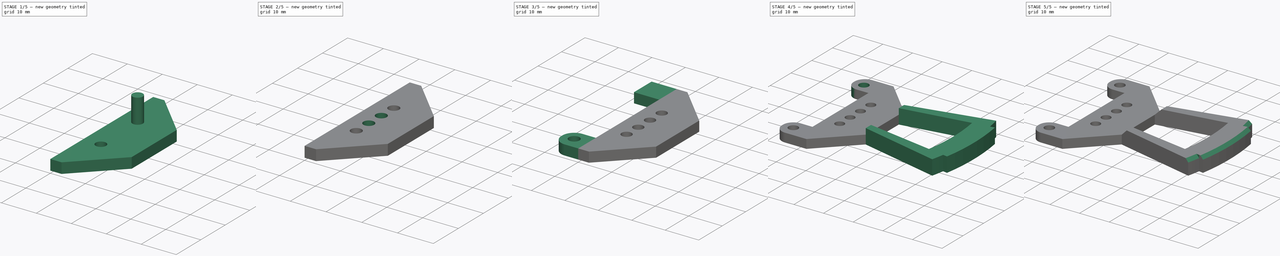
[diagram: build sequence overview — one tinted view per stage of 5, left to right]
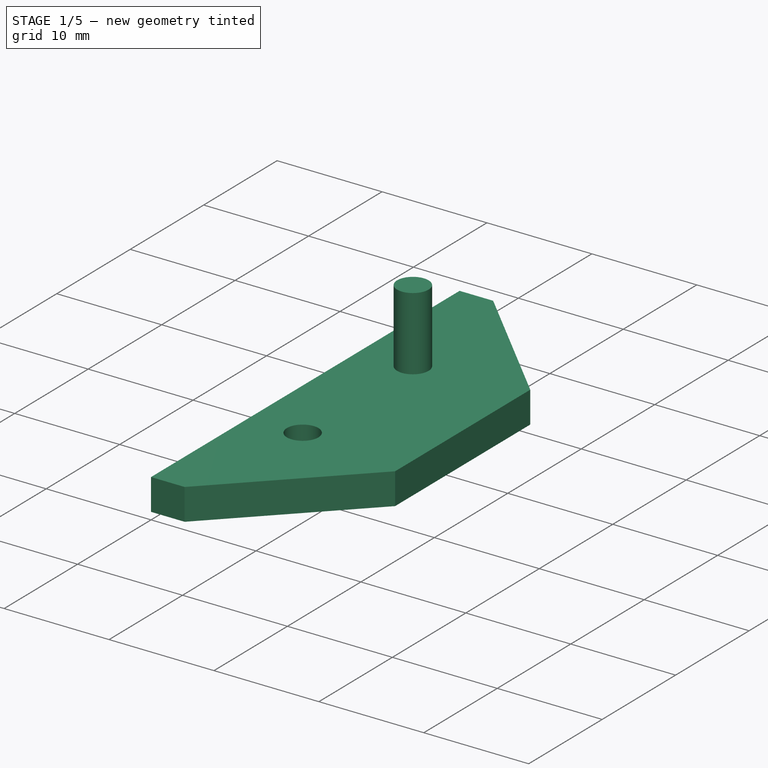
[diagram: stage 1 of 5 — iso view after this stage's code; geometry added in this stage tinted green]
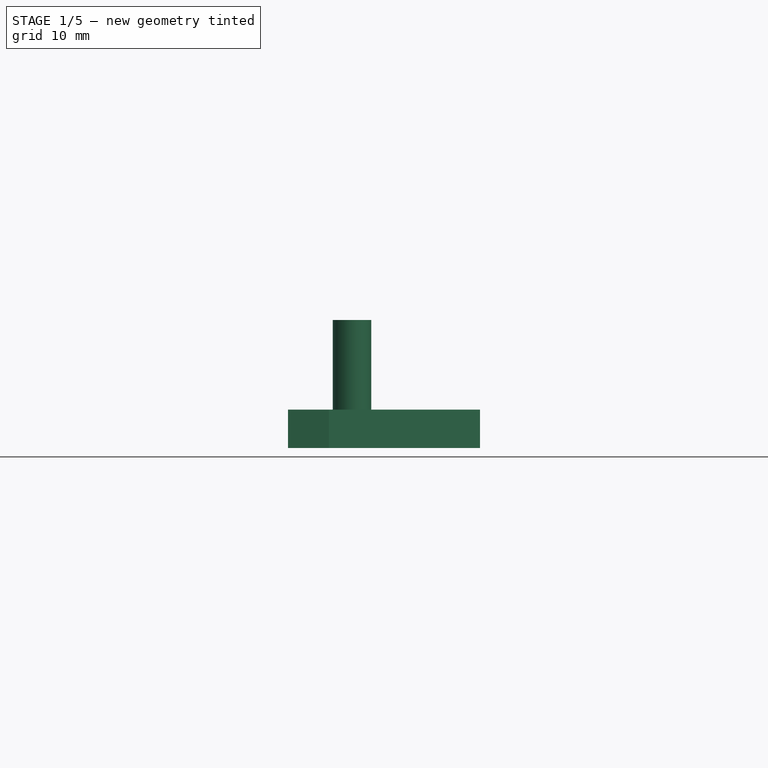
[diagram: stage 1 of 5 — front view after this stage's code; geometry added in this stage tinted green]
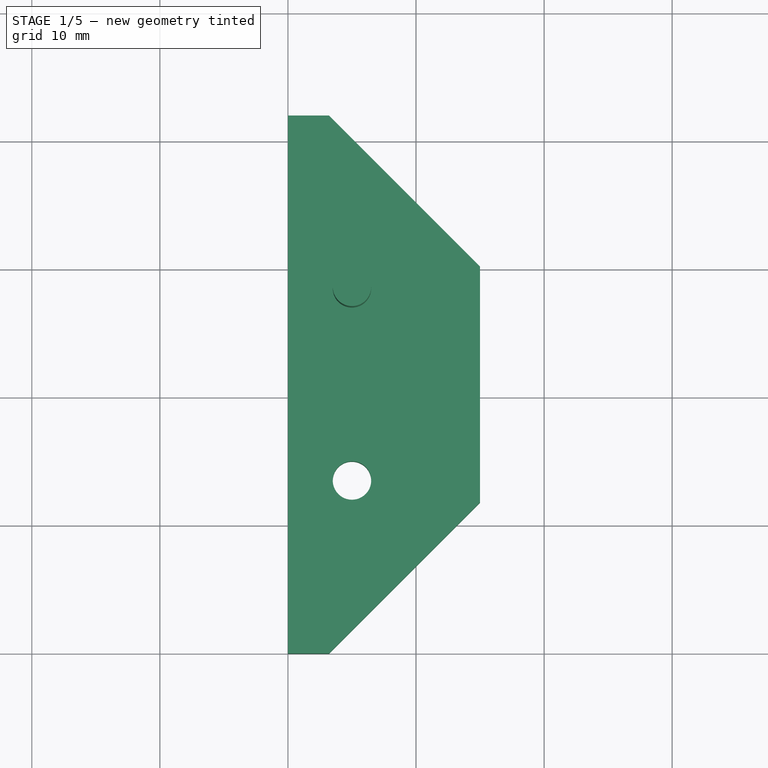
[diagram: stage 1 of 5 — top view after this stage's code; geometry added in this stage tinted green]
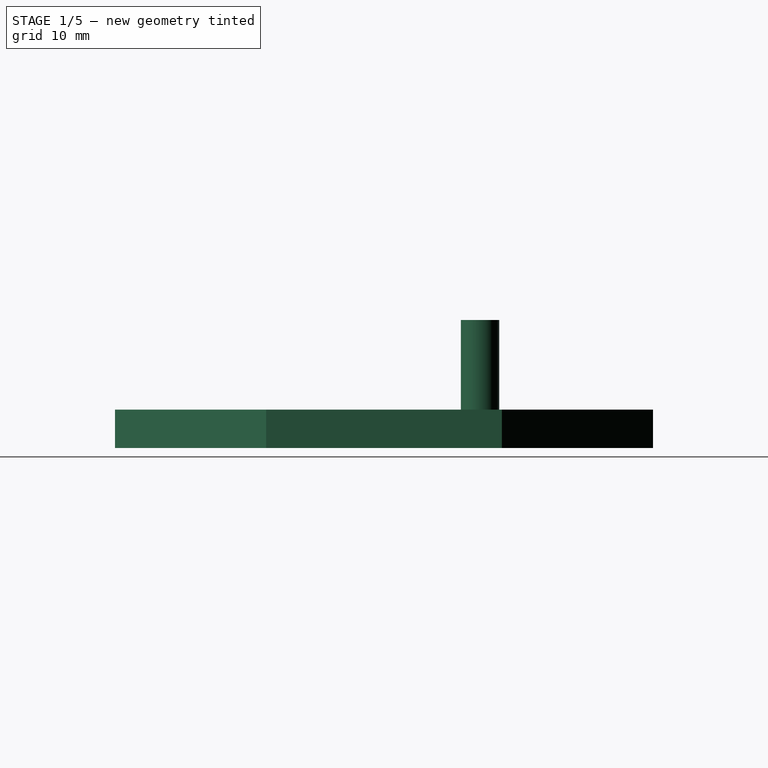
[diagram: stage 1 of 5 — right view after this stage's code; geometry added in this stage tinted green]
FCSTD DOCUMENT  (FreeCAD 0.16R6707 (Git))
Label: xmaxx-hallsensorholder
License: All rights reserved
LicenseURL: http://en.wikipedia.org/wiki/All_rights_reserved
objects: PartDesign::Chamfer×7, Part::Cylinder×6, Part::Cut×6, PartDesign::Fillet×4, Part::Box×3, Sketcher::SketchObject×1, PartDesign::Pad×1, Part::MultiFuse×1
note: 30 computed .brp shape members not serialized (recipe doc carries the construction recipe); baked Part::Feature solids carry a one-line shape summary decoded from their .brp

FEATURE [Part::Box] Box  label="Cube"
  Height = 3
  Length = 15
  Width = 42
FEATURE [Part::Cylinder] Cylinder002
  Angle = 360
  Height = 10
  Placement = pos=(5,13.5,0) rot=(0,0,1;0rad)
  Radius = 1.5
FEATURE [Part::Cylinder] Cylinder003
  Angle = 360
  Height = 10
  Placement = pos=(5,28.5,0) rot=(0,0,1;0rad)
  Radius = 1.5
FEATURE [PartDesign::Chamfer] Chamfer005
  Base = -> Box [Edge7]
  Size = 11.8
FEATURE [PartDesign::Chamfer] Chamfer006
  Base = -> Chamfer005 [Edge3]
  Size = 11.8
FEATURE [Part::Cut] Cut002
  Base = -> Chamfer006
  Tool = -> Cylinder002
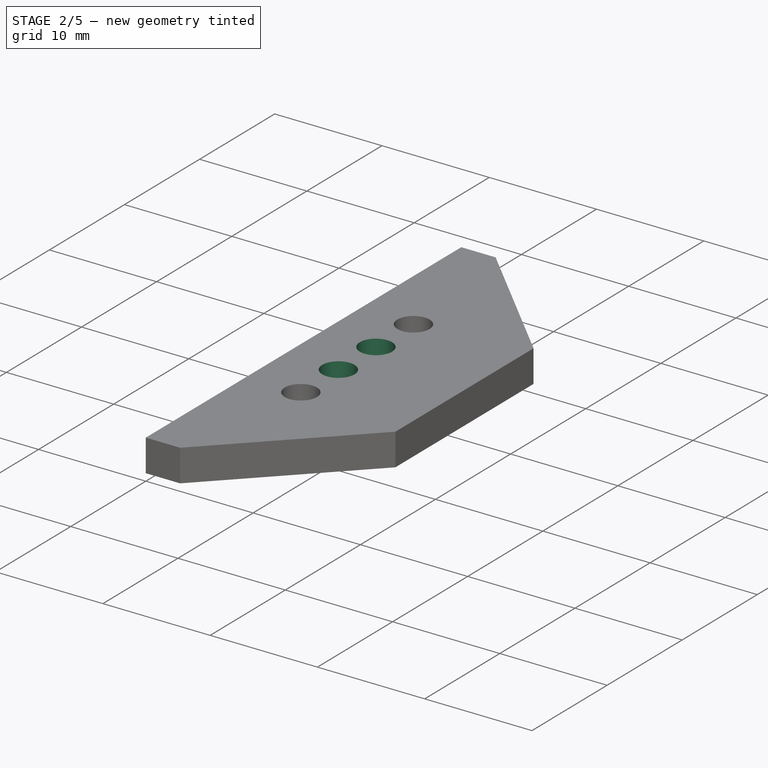
[diagram: stage 2 of 5 — iso view after this stage's code; geometry added in this stage tinted green]
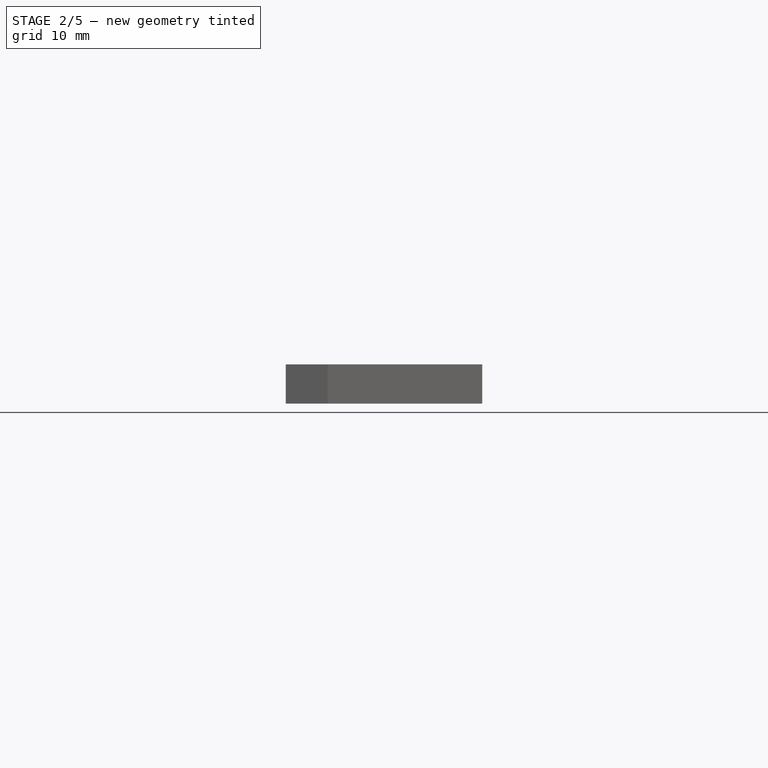
[diagram: stage 2 of 5 — front view after this stage's code; geometry added in this stage tinted green]
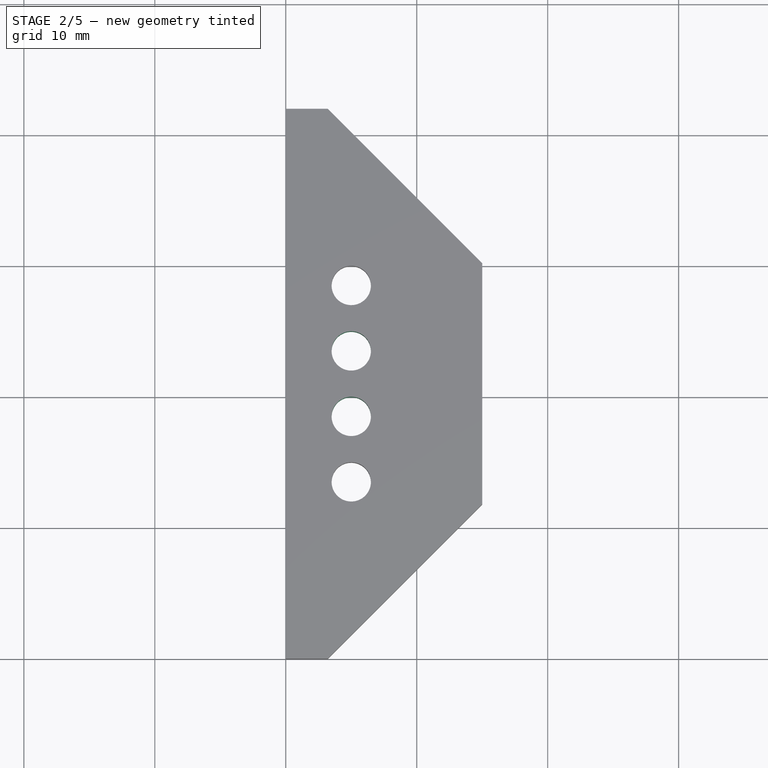
[diagram: stage 2 of 5 — top view after this stage's code; geometry added in this stage tinted green]
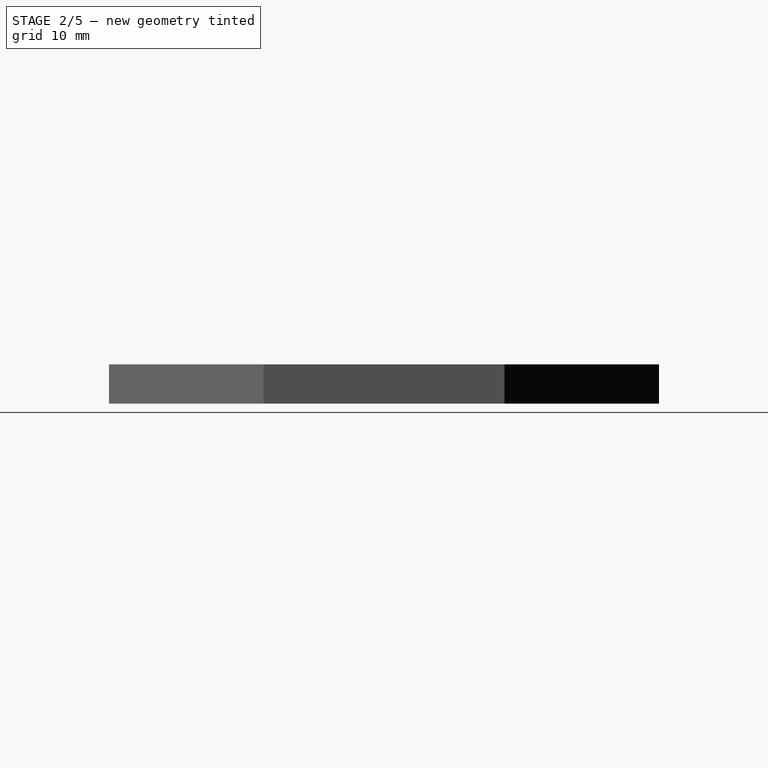
[diagram: stage 2 of 5 — right view after this stage's code; geometry added in this stage tinted green]
FEATURE [Part::Cylinder] Cylinder004
  Angle = 360
  Height = 10
  Placement = pos=(5,23.5,0) rot=(0,0,1;0rad)
  Radius = 1.5
FEATURE [Part::Cylinder] Cylinder005
  Angle = 360
  Height = 10
  Placement = pos=(5,18.5,0) rot=(0,0,1;0rad)
  Radius = 1.5
FEATURE [Part::Cut] Cut003
  Base = -> Cut002
  Tool = -> Cylinder003
FEATURE [Part::Cut] Cut004
  Base = -> Cut003
  Tool = -> Cylinder004
FEATURE [Part::Cut] Cut005
  Base = -> Cut004
  Tool = -> Cylinder005
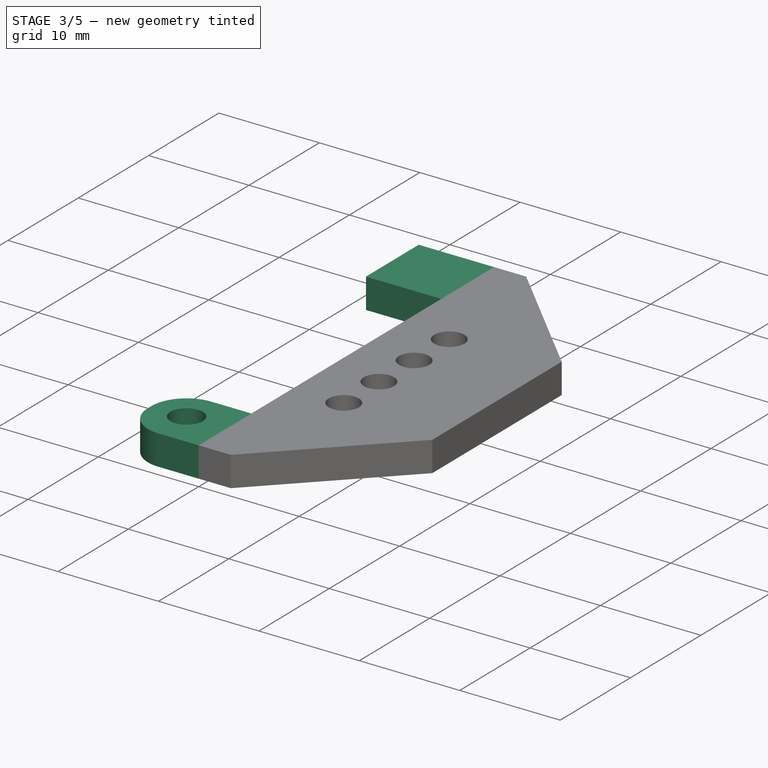
[diagram: stage 3 of 5 — iso view after this stage's code; geometry added in this stage tinted green]
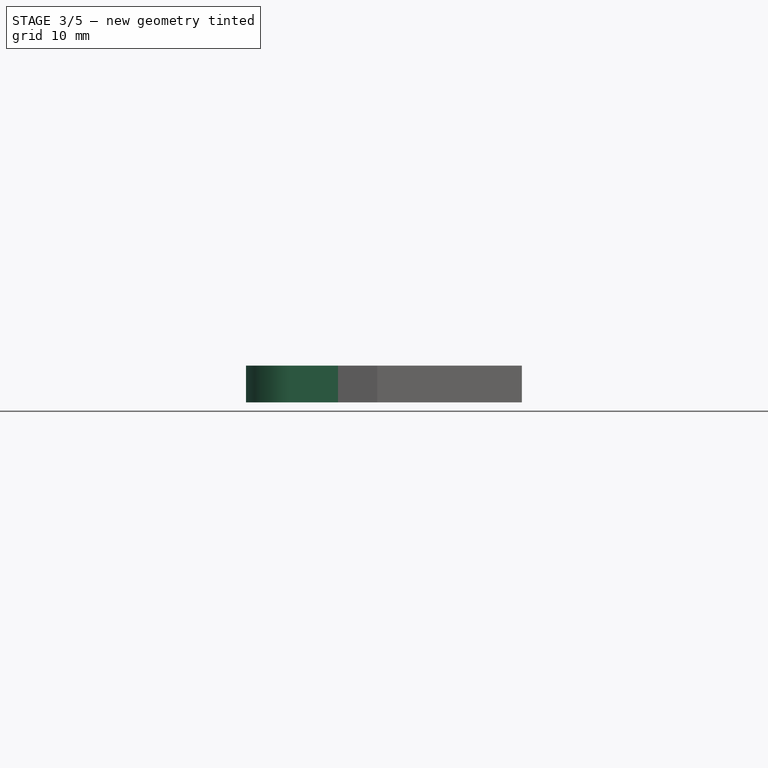
[diagram: stage 3 of 5 — front view after this stage's code; geometry added in this stage tinted green]
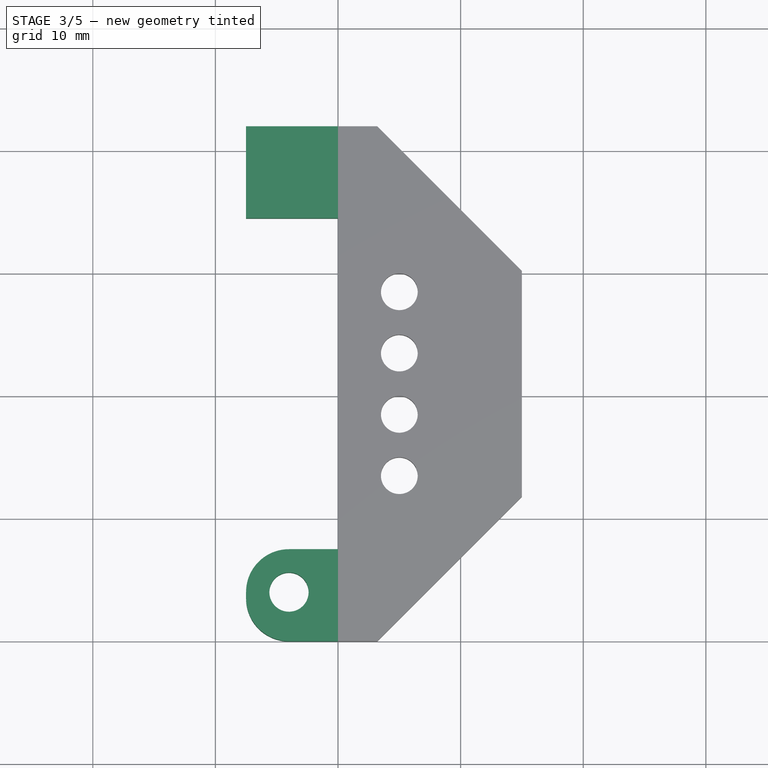
[diagram: stage 3 of 5 — top view after this stage's code; geometry added in this stage tinted green]
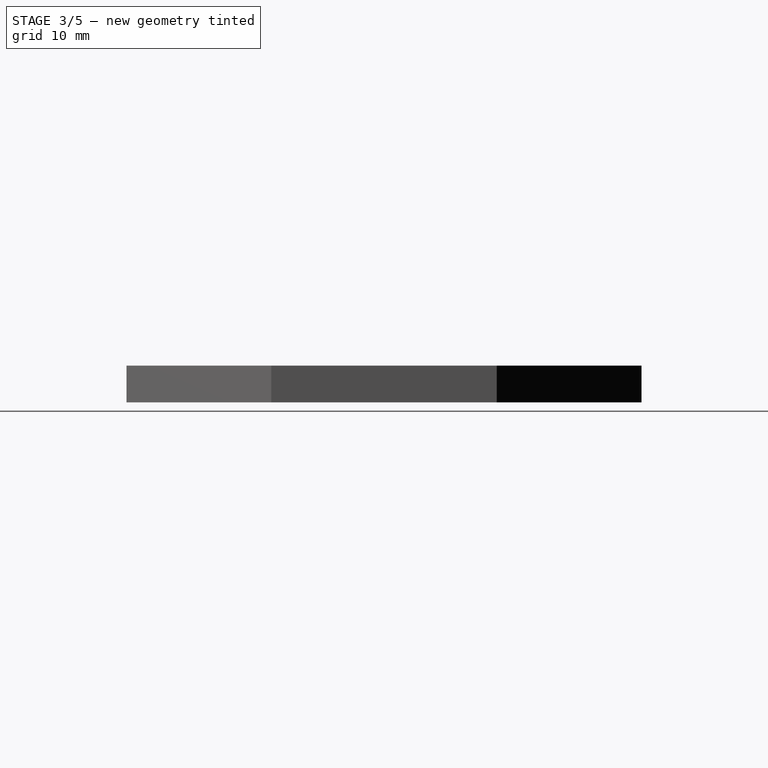
[diagram: stage 3 of 5 — right view after this stage's code; geometry added in this stage tinted green]
FEATURE [Part::Box] Box001  label="Cube001"
  Height = 3
  Length = 7.5
  Placement = pos=(-7.5,0,0) rot=(0,0,1;0rad)
  Width = 7.5
FEATURE [Part::Box] Box002  label="Cube002"
  Height = 3
  Length = 7.5
  Placement = pos=(-7.5,34.5,0) rot=(0,0,1;0rad)
  Width = 7.5
FEATURE [Part::Cylinder] Cylinder
  Angle = 360
  Height = 10
  Placement = pos=(-4,4,0) rot=(0,0,1;0rad)
  Radius = 1.6
FEATURE [PartDesign::Fillet] Fillet002
  Base = -> Box001 [Edge3]
  Placement = pos=(-7.5,0,0) rot=(0,0,1;0rad)
  Radius = 3.5
FEATURE [PartDesign::Fillet] Fillet003
  Base = -> Fillet002 [Edge3]
  Placement = pos=(-7.5,0,0) rot=(0,0,1;0rad)
  Radius = 3.5
FEATURE [Part::Cut] Cut001
  Base = -> Fillet003
  Tool = -> Cylinder
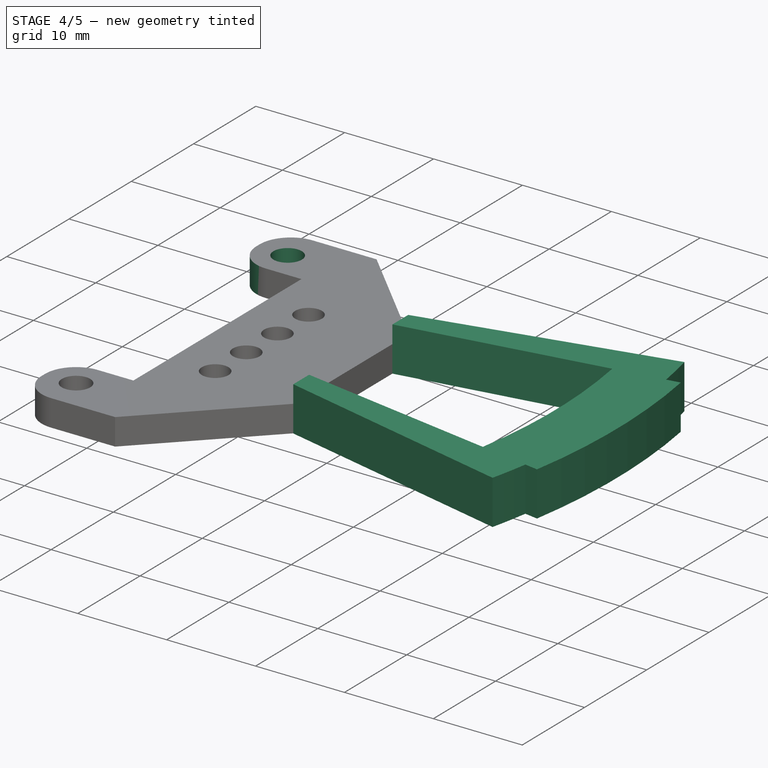
[diagram: stage 4 of 5 — iso view after this stage's code; geometry added in this stage tinted green]
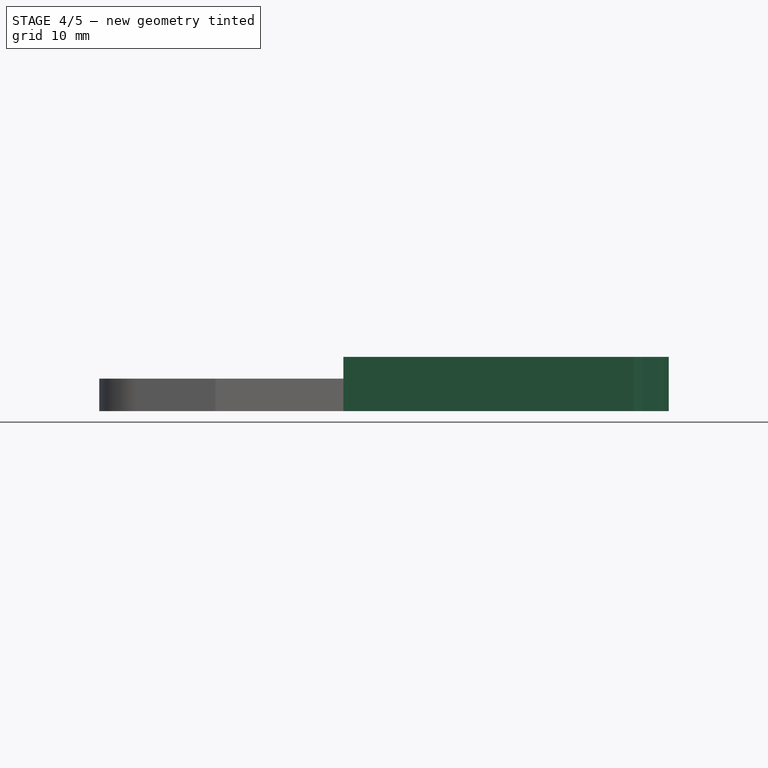
[diagram: stage 4 of 5 — front view after this stage's code; geometry added in this stage tinted green]
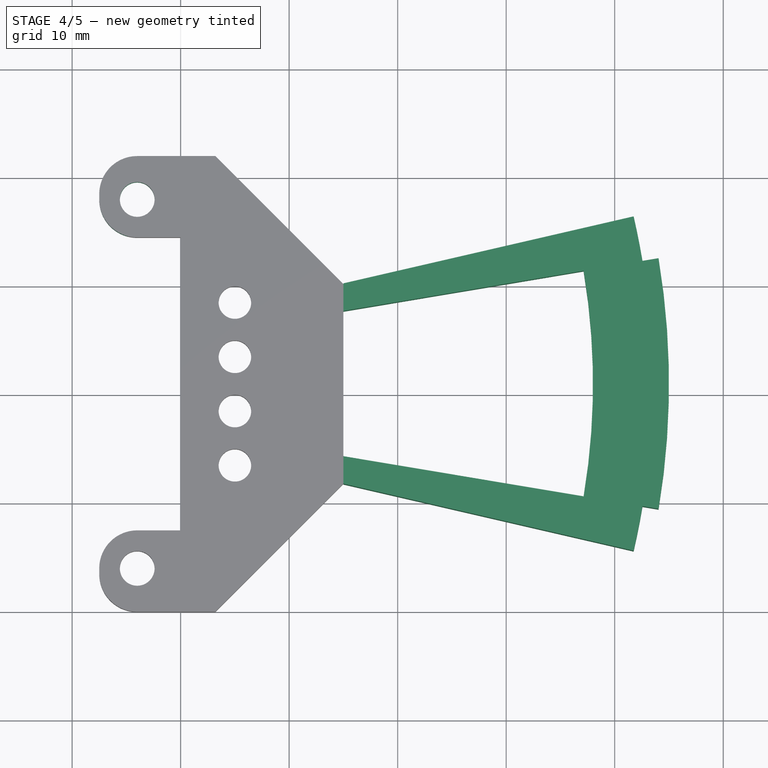
[diagram: stage 4 of 5 — top view after this stage's code; geometry added in this stage tinted green]
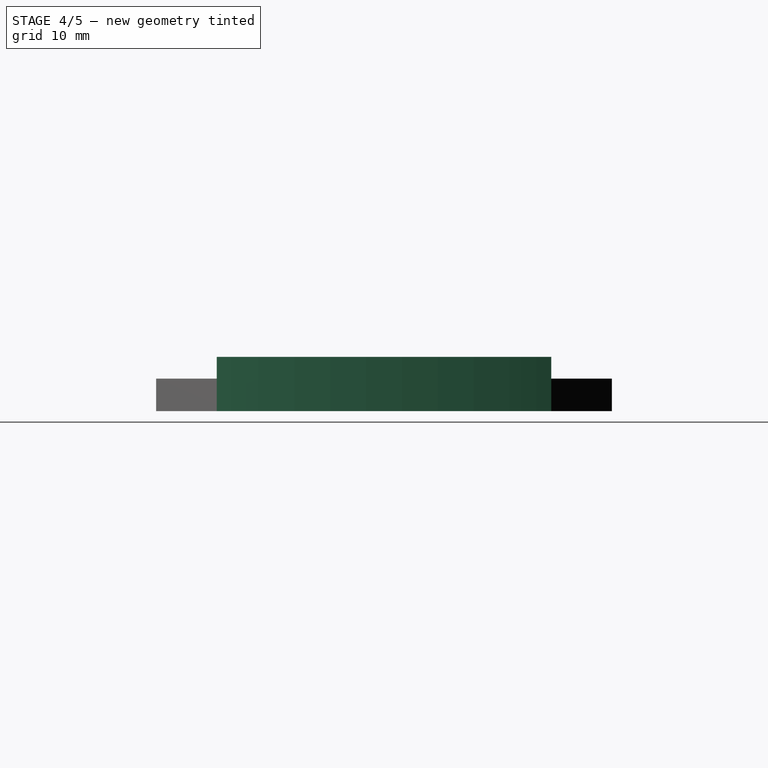
[diagram: stage 4 of 5 — right view after this stage's code; geometry added in this stage tinted green]
FEATURE [Part::Cylinder] Cylinder001
  Angle = 360
  Height = 10
  Placement = pos=(-4,38,0) rot=(0,0,1;0rad)
  Radius = 1.6
FEATURE [Sketcher::SketchObject] Sketch
  Placement = pos=(-25,21,0) rot=(0,0,1;0rad)
  sketch-geometry (18):
    g0: ArcOfCircle CenterX=0 CenterY=0 CenterZ=0 NormalX=0 NormalY=0 NormalZ=1 Radius=68.5 StartAngle=6.05629 EndAngle=6.11738
    g1: LineSegment StartX=40 StartY=9.23473 StartZ=0 EndX=66.7443 EndY=15.4091 EndZ=0
    g2: LineSegment StartX=40 StartY=-9.23473 StartZ=0 EndX=66.7443 EndY=-15.4091 EndZ=0
    g3: ArcOfCircle CenterX=0 CenterY=0 CenterZ=0 NormalX=0 NormalY=0 NormalZ=1 Radius=70 StartAngle=6.11738 EndAngle=6.44899
    g4: LineSegment StartX=67.5606 StartY=11.3058 StartZ=0 EndX=69.04 EndY=11.5533 EndZ=0
    g5: LineSegment StartX=67.5606 StartY=-11.3058 StartZ=0 EndX=69.04 EndY=-11.5533 EndZ=0
    g6: LineSegment StartX=40 StartY=9.23473 StartZ=0 EndX=40 EndY=6.6937 EndZ=0
    g7: LineSegment [constr] StartX=0 StartY=0 StartZ=0 EndX=66.7443 EndY=15.4091 EndZ=0
    g8: LineSegment [constr] StartX=0 StartY=0 StartZ=0 EndX=69.04 EndY=11.5533 EndZ=0
    g9: LineSegment [constr] StartX=0 StartY=0 StartZ=0 EndX=66.7443 EndY=-15.4091 EndZ=0
    g10: LineSegment [constr] StartX=0 StartY=0 StartZ=0 EndX=69.04 EndY=-11.5533 EndZ=0
    g11: GeomPoint [constr] X=67.5606 Y=11.3058 Z=0
    g12: GeomPoint [constr] X=67.5606 Y=-11.3058 Z=0
    g13: ArcOfCircle CenterX=0 CenterY=0 CenterZ=0 NormalX=0 NormalY=0 NormalZ=1 Radius=68.5 StartAngle=0.165806 EndAngle=0.226893
    g14: ArcOfCircle CenterX=0 CenterY=0 CenterZ=0 NormalX=0 NormalY=0 NormalZ=1 Radius=63 StartAngle=6.11738 EndAngle=6.44899
    g15: LineSegment StartX=40 StartY=6.6937 StartZ=0 EndX=62.136 EndY=10.398 EndZ=0
    g16: LineSegment StartX=40 StartY=-6.6937 StartZ=0 EndX=62.136 EndY=-10.398 EndZ=0
    g17: LineSegment StartX=40 StartY=-6.6937 StartZ=0 EndX=40 EndY=-9.23473 EndZ=0
  constraints (50):
    c: Coincident(g0,g-1)
    c: Radius(g0) = 68.5
    c: Coincident(g1,g13)
    c: Coincident(g2,g0)
    c: Coincident(g3,g-1)
    c: Coincident(g4,g3)
    c: Coincident(g5,g3)
    c: Radius(g3) = 70
    c: Vertical(g6)
    c: Coincident(g1,g6)
    c: Coincident(g2,g17)
    c: DistanceX(g-1,g1) = 40
    c: Symmetric(g1,g2,g-1)
    c: Coincident(g7,g-1)
    c: Coincident(g7,g13)
    c: Coincident(g8,g-1)
    c: Coincident(g8,g3)
    c: Angle(g-1,g7) = 0.226893
    c: Coincident(g9,g-1)
    c: Coincident(g9,g0)
    c: Coincident(g10,g-1)
    c: Coincident(g10,g3)
    c: PointOnObject(g11,g4)
    c: PointOnObject(g12,g5)
    c: PointOnObject(g11,g0)
    c: PointOnObject(g12,g0)
    c: Equal(g0,g13)
    c: Coincident(g0,g5)
    c: Coincident(g13,g4)
    c: Coincident(g0,g13)
    c: Symmetric(g4,g0,g-1)
    c: PointOnObject(g1,g7)
    c: PointOnObject(g4,g8)
    c: Symmetric(g1,g0,g-1)
    c: Symmetric(g3,g3,g-1)
    c: PointOnObject(g2,g9)
    c: Coincident(g14,g-1)
    c: PointOnObject(g14,g8)
    c: PointOnObject(g14,g10)
    c: PointOnObject(g15,g8)
    c: Coincident(g15,g14)
    c: PointOnObject(g16,g10)
    c: Coincident(g16,g14)
    c: PointOnObject(g15,g6)
    c: PointOnObject(g16,g6)
    c: Radius(g14) = 63
    c: Angle(g-1,g8) = 0.165806
    c: PointOnObject(g6,g8)
    c: PointOnObject(g17,g10)
    c: Tangent(g6,g17)
FEATURE [PartDesign::Pad] Pad
  Length = 5
  Length2 = 102
  Placement = pos=(-25,21,0) rot=(0,0,1;0rad)
  Sketch = -> Sketch
  Type = 0
FEATURE [PartDesign::Fillet] Fillet
  Base = -> Box002 [Edge1]
  Placement = pos=(-7.5,34.5,0) rot=(0,0,1;0rad)
  Radius = 3.5
FEATURE [PartDesign::Fillet] Fillet001
  Base = -> Fillet [Edge3]
  Placement = pos=(-7.5,34.5,0) rot=(0,0,1;0rad)
  Radius = 3.5
FEATURE [Part::Cut] Cut
  Base = -> Fillet001
  Tool = -> Cylinder001
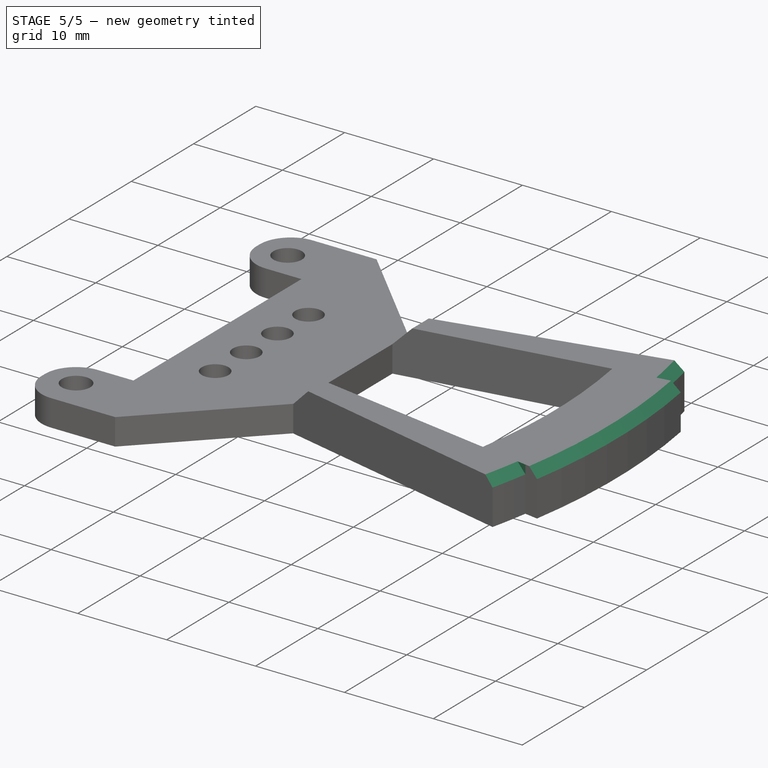
[diagram: stage 5 of 5 — iso view after this stage's code; geometry added in this stage tinted green]
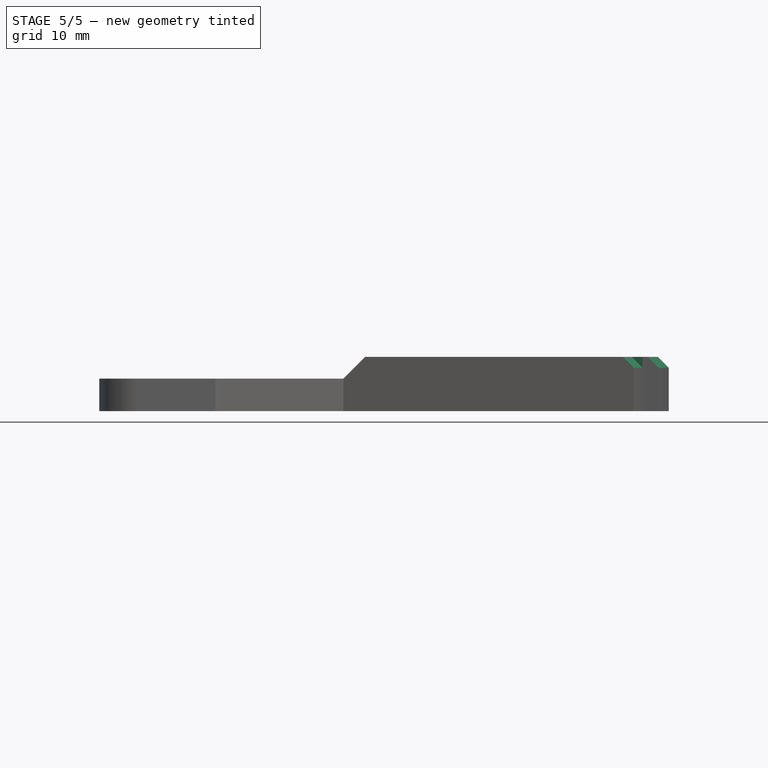
[diagram: stage 5 of 5 — front view after this stage's code; geometry added in this stage tinted green]
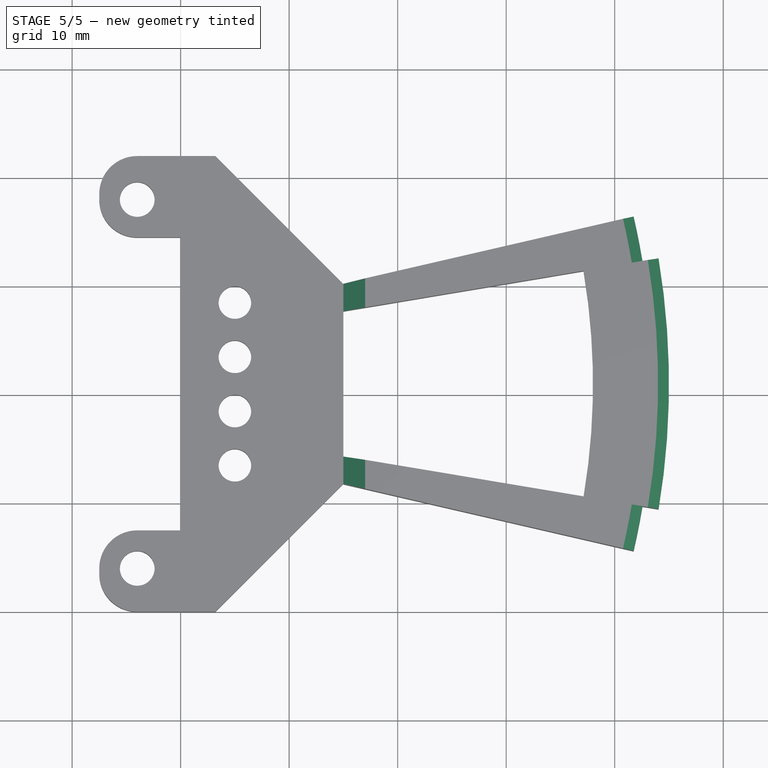
[diagram: stage 5 of 5 — top view after this stage's code; geometry added in this stage tinted green]
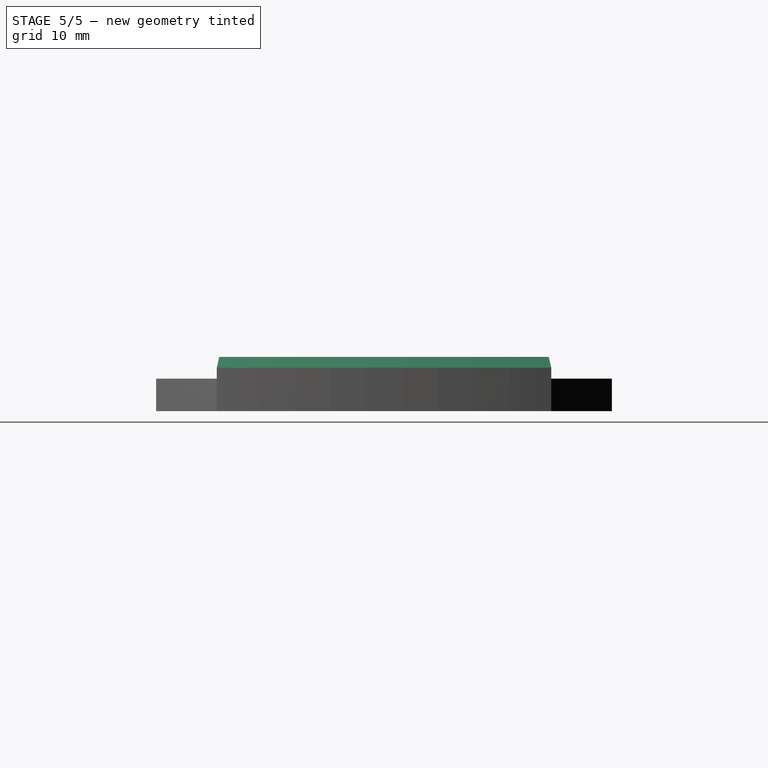
[diagram: stage 5 of 5 — right view after this stage's code; geometry added in this stage tinted green]
FEATURE [PartDesign::Chamfer] Chamfer
  Base = -> Pad [Edge22]
  Placement = pos=(-25,21,0) rot=(0,0,1;0rad)
  Size = 1
FEATURE [PartDesign::Chamfer] Chamfer001
  Base = -> Chamfer [Edge26]
  Placement = pos=(-25,21,0) rot=(0,0,1;0rad)
  Size = 1
FEATURE [PartDesign::Chamfer] Chamfer002
  Base = -> Chamfer001 [Edge25]
  Placement = pos=(-25,21,0) rot=(0,0,1;0rad)
  Size = 1
FEATURE [PartDesign::Chamfer] Chamfer003
  Base = -> Chamfer002 [Edge11]
  Placement = pos=(-25,21,0) rot=(0,0,1;0rad)
  Size = 2
FEATURE [PartDesign::Chamfer] Chamfer004
  Base = -> Chamfer003 [Edge7]
  Placement = pos=(-25,21,0) rot=(0,0,1;0rad)
  Size = 2
FEATURE [Part::MultiFuse] Fusion
  Shapes = -> [Cut,Cut001,Cut005,Chamfer004]
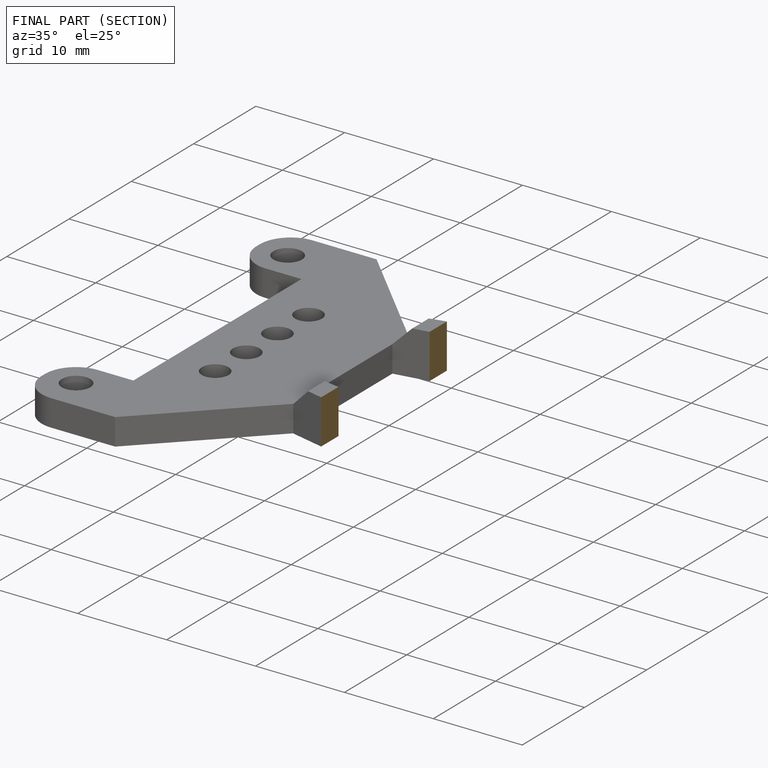
[diagram: finished part — half-section view (interior)]
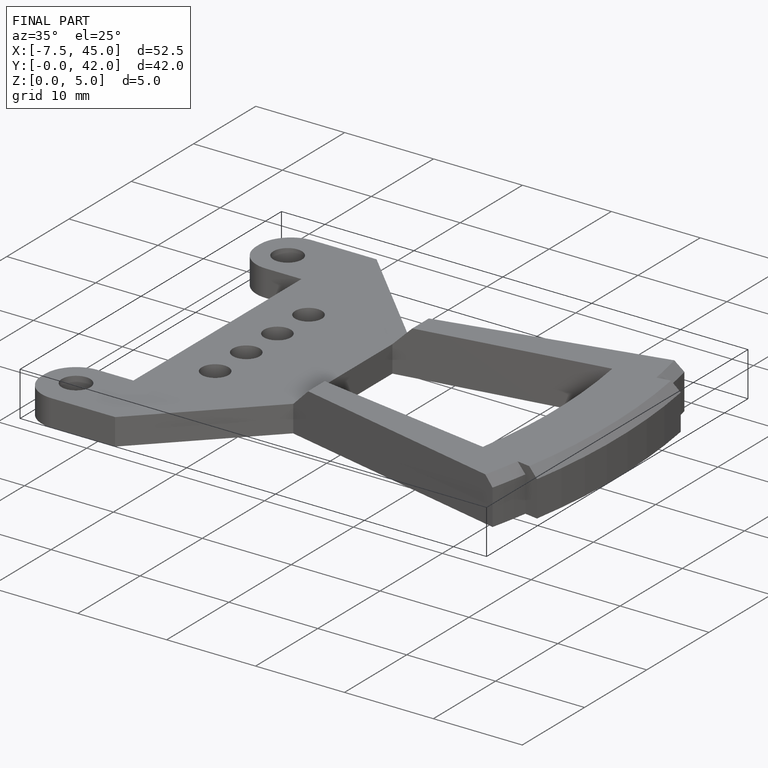
[diagram: finished part — iso view with bounding-box wireframe]
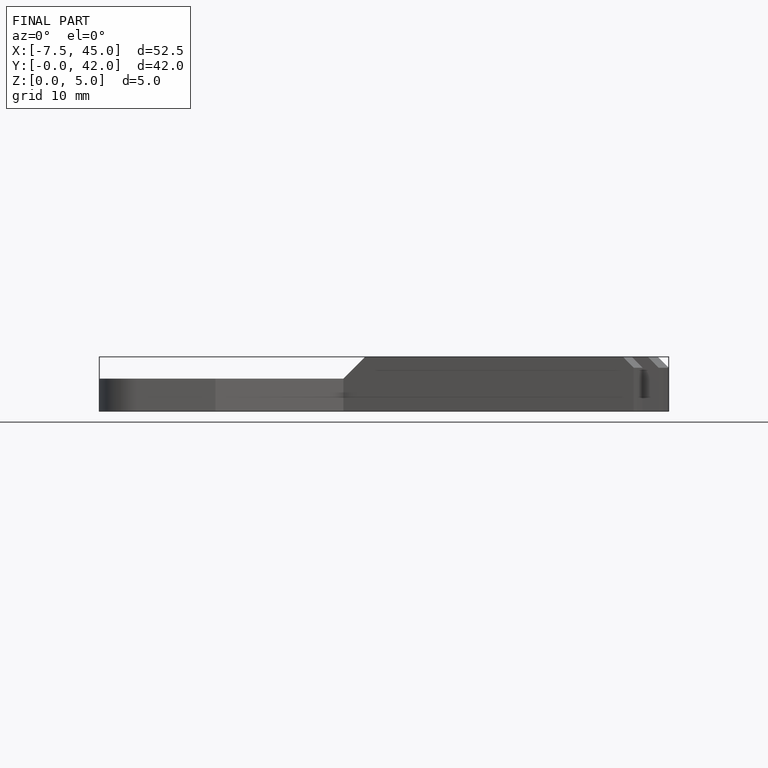
[diagram: finished part — front view with bounding-box wireframe]
